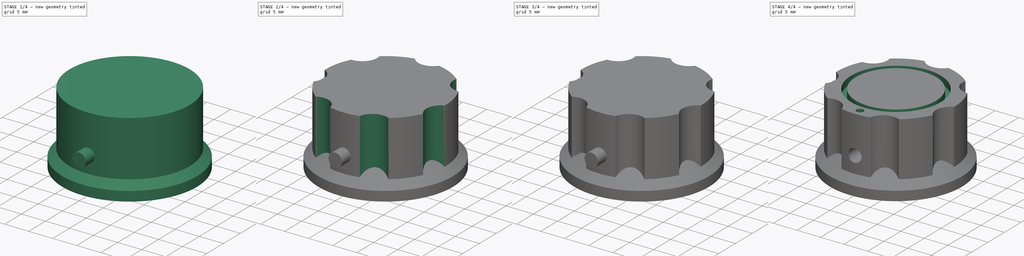
[diagram: build sequence overview — one tinted view per stage of 4, left to right]
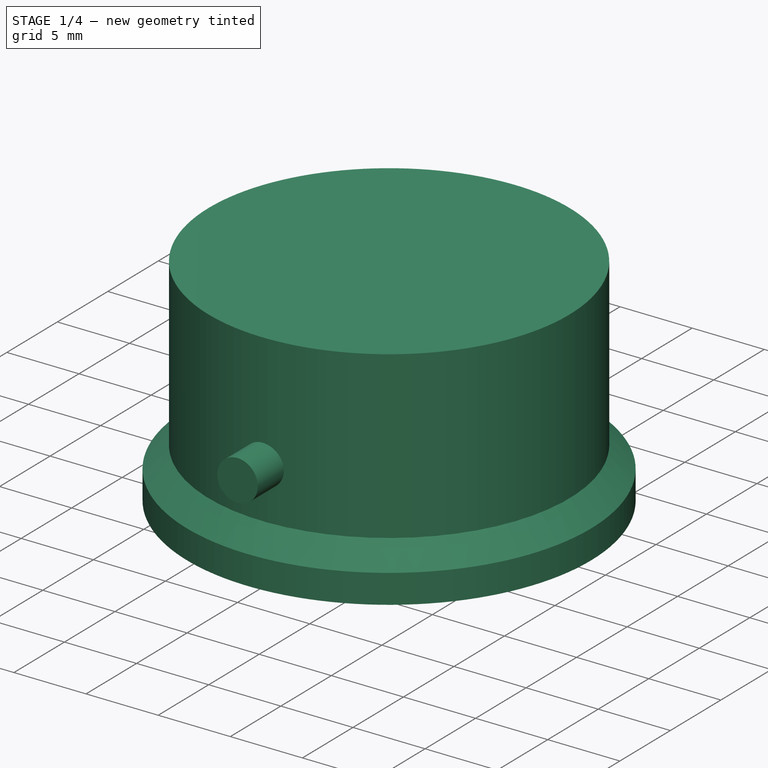
[diagram: stage 1 of 4 — iso view after this stage's code; geometry added in this stage tinted green]
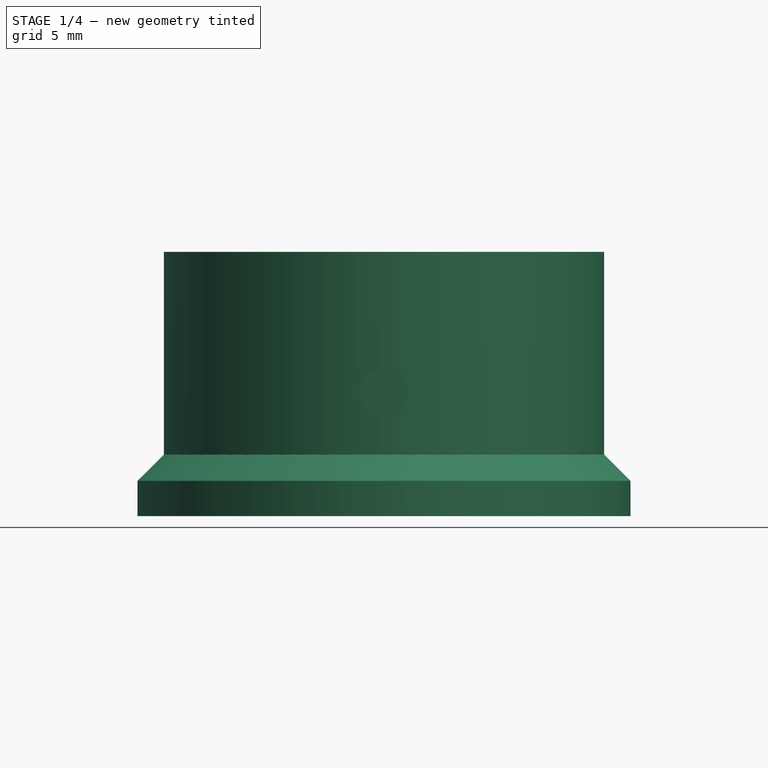
[diagram: stage 1 of 4 — front view after this stage's code; geometry added in this stage tinted green]
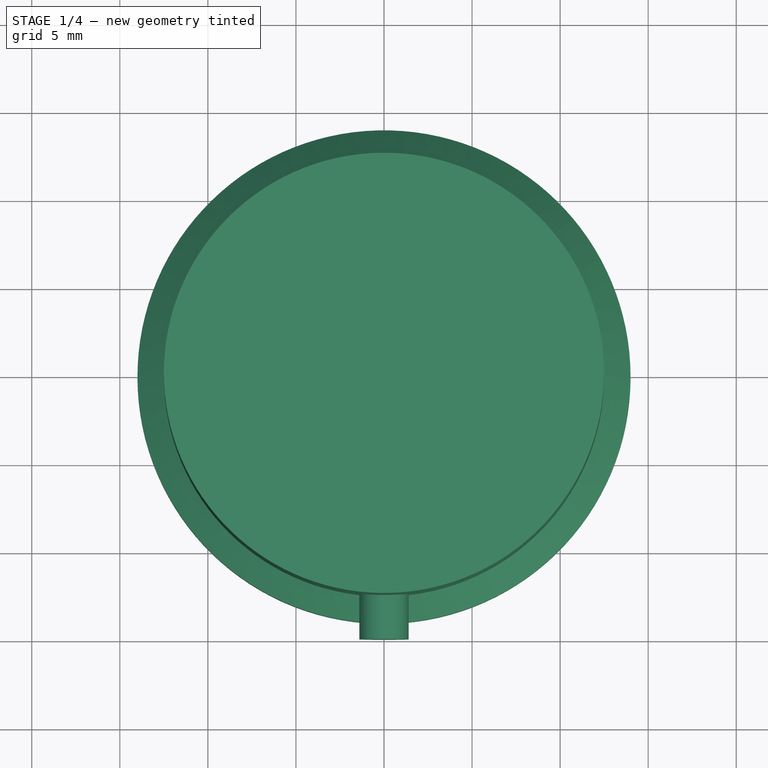
[diagram: stage 1 of 4 — top view after this stage's code; geometry added in this stage tinted green]
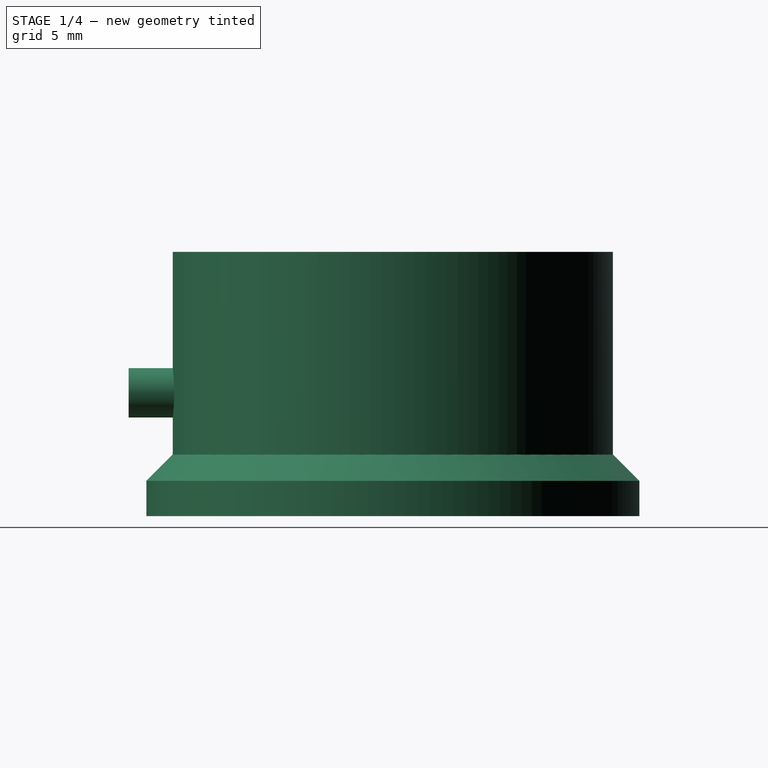
[diagram: stage 1 of 4 — right view after this stage's code; geometry added in this stage tinted green]
FCSTD DOCUMENT  (FreeCAD 0.16R6222 (Git))
Label: knob Z
License: All rights reserved
LicenseURL: http://en.wikipedia.org/wiki/All_rights_reserved
objects: Sketcher::SketchObject×9, PartDesign::Pad×4, PartDesign::Pocket×4, PartDesign::PolarPattern×2, PartDesign::Revolution×1, Part::MultiFuse×1, Part::Cut×1, Part::Feature×1
note: 32 computed .brp shape members not serialized (recipe doc carries the construction recipe); baked Part::Feature solids carry a one-line shape summary decoded from their .brp

FEATURE [Sketcher::SketchObject] Sketch
  sketch-geometry (1):
    g0: Circle CenterX=0 CenterY=0 CenterZ=0 NormalX=0 NormalY=0 NormalZ=1 Radius=12.5
  constraints (2):
    c: Coincident(g0,g-1)
    c: Radius(g0) = 12.5
FEATURE [PartDesign::Pad] Pad  label="main body extrusion"
  Length = 15
  Length2 = 100
  Sketch = -> Sketch
  Type = 0
FEATURE [Sketcher::SketchObject] Sketch002
  Placement = pos=(0,0,0) rot=(-1,0,0;4.71239rad)
  sketch-geometry (5):
    g0: LineSegment StartX=0 StartY=0 StartZ=0 EndX=0 EndY=5.18293 EndZ=0
    g1: LineSegment StartX=0 StartY=5.18293 StartZ=0 EndX=10.8171 EndY=5.18293 EndZ=0
    g2: LineSegment StartX=10.8171 StartY=5.18293 StartZ=0 EndX=14 EndY=2 EndZ=0
    g3: LineSegment StartX=14 StartY=2 StartZ=0 EndX=14 EndY=0 EndZ=0
    g4: LineSegment StartX=14 StartY=0 StartZ=0 EndX=0 EndY=0 EndZ=0
  constraints (13):
    c: Vertical(g0)
    c: Coincident(g0,g1)
    c: Horizontal(g1)
    c: Coincident(g1,g2)
    c: Coincident(g2,g3)
    c: Vertical(g3)
    c: Coincident(g3,g4)
    c: Coincident(g4,g0)
    c: Horizontal(g4)
    c: DistanceX(g4) = -14
    c: Angle(g2,g4) = 0.785398
    c: Coincident(g-1,g0)
    c: DistanceY(g3) = -2
FEATURE [PartDesign::Revolution] Revolution
  Angle = 360
  Axis = (0,0,1)
  Base = (0,0,0)
  Placement = pos=(0,0,0) rot=(-1,0,0;4.71239rad)
  ReferenceAxis = -> Sketch002 [V_Axis]
  Reversed = true
  Sketch = -> Sketch002
FEATURE [Sketcher::SketchObject] Sketch007
  Placement = pos=(0,0,0) rot=(-1,0,0;4.71239rad)
  sketch-geometry (1):
    g0: Circle CenterX=0 CenterY=7 CenterZ=0 NormalX=0 NormalY=0 NormalZ=1 Radius=1.4
  constraints (3):
    c: PointOnObject(g0,g-2)
    c: Radius(g0) = 1.4
    c: DistanceY(g-1,g0) = 7
FEATURE [PartDesign::Pad] Pad003
  Length = 15
  Length2 = 100
  Placement = pos=(0,0,0) rot=(-1,0,0;4.71239rad)
  Sketch = -> Sketch007
  Type = 0
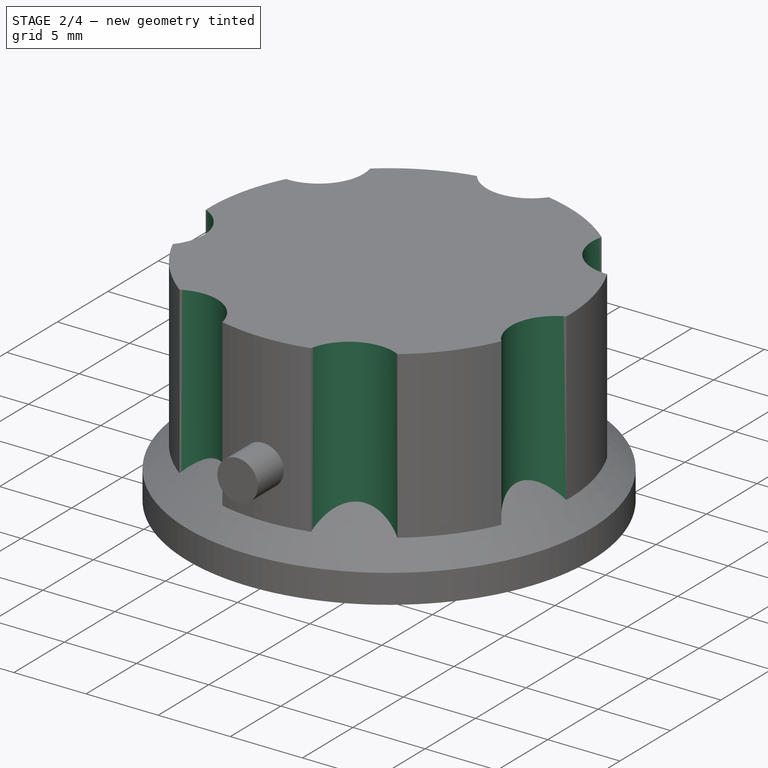
[diagram: stage 2 of 4 — iso view after this stage's code; geometry added in this stage tinted green]
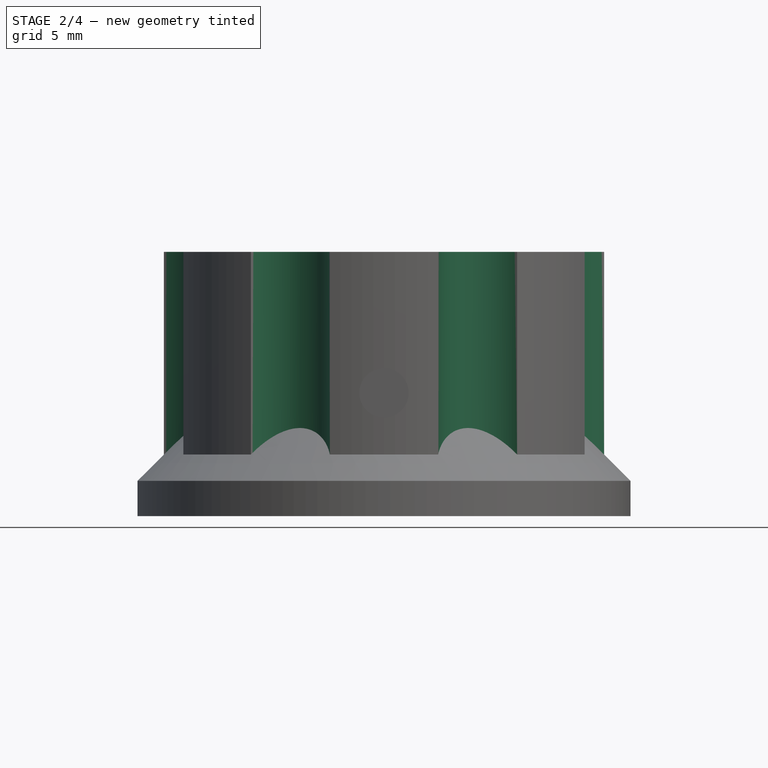
[diagram: stage 2 of 4 — front view after this stage's code; geometry added in this stage tinted green]
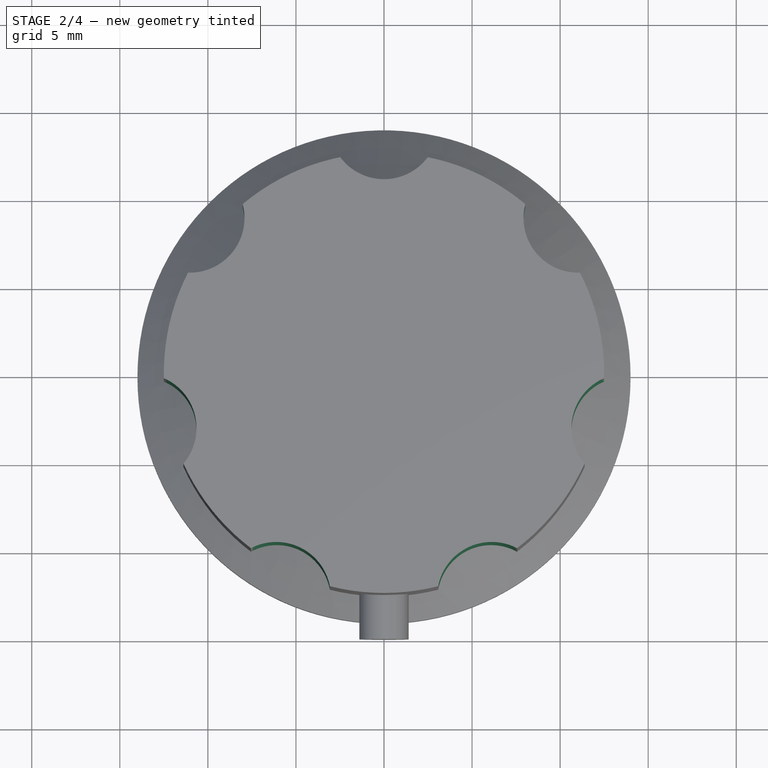
[diagram: stage 2 of 4 — top view after this stage's code; geometry added in this stage tinted green]
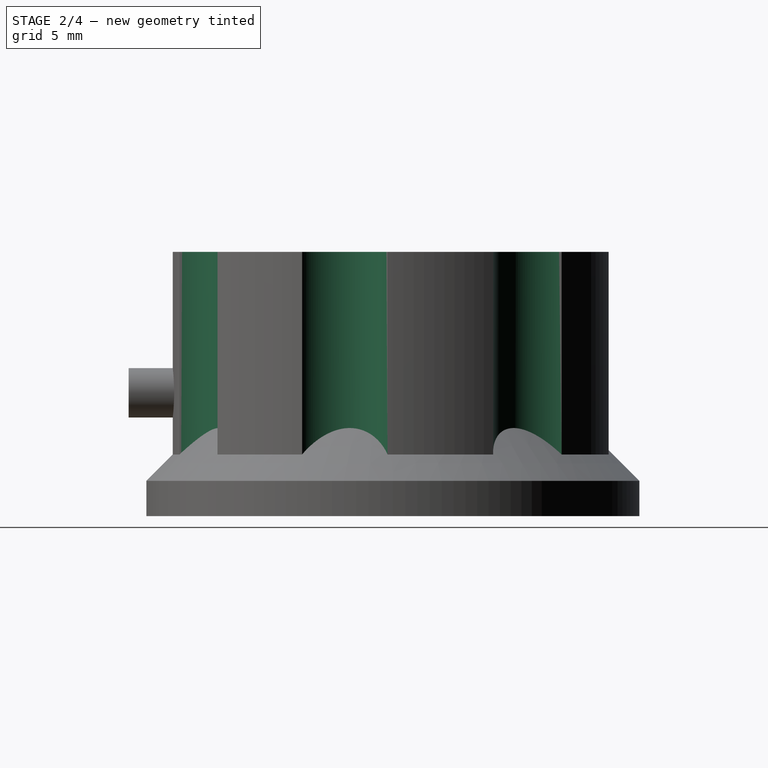
[diagram: stage 2 of 4 — right view after this stage's code; geometry added in this stage tinted green]
FEATURE [Sketcher::SketchObject] Sketch001
  Placement = pos=(0,0,15) rot=(0,0,1;0rad)
  Support = -> Pad [Face3]
  sketch-geometry (1):
    g0: Circle CenterX=0 CenterY=14.1 CenterZ=0 NormalX=0 NormalY=0 NormalZ=1 Radius=3.1
  constraints (3):
    c: PointOnObject(g0,g-2)
    c: Radius(g0) = 3.1
    c: DistanceY(g-1,g0) = 14.1
FEATURE [PartDesign::Pocket] Pocket  label="creek pocket"
  Length = 5
  Sketch = -> Sketch001
  Type = 1
FEATURE [PartDesign::PolarPattern] PolarPattern  label="holes"
  Angle = 360
  Axis = -> Sketch001 [N_Axis]
  Occurrences = 7
  Originals = -> [Pocket]
FEATURE [Part::MultiFuse] Fusion
  Shapes = -> [PolarPattern,Revolution]
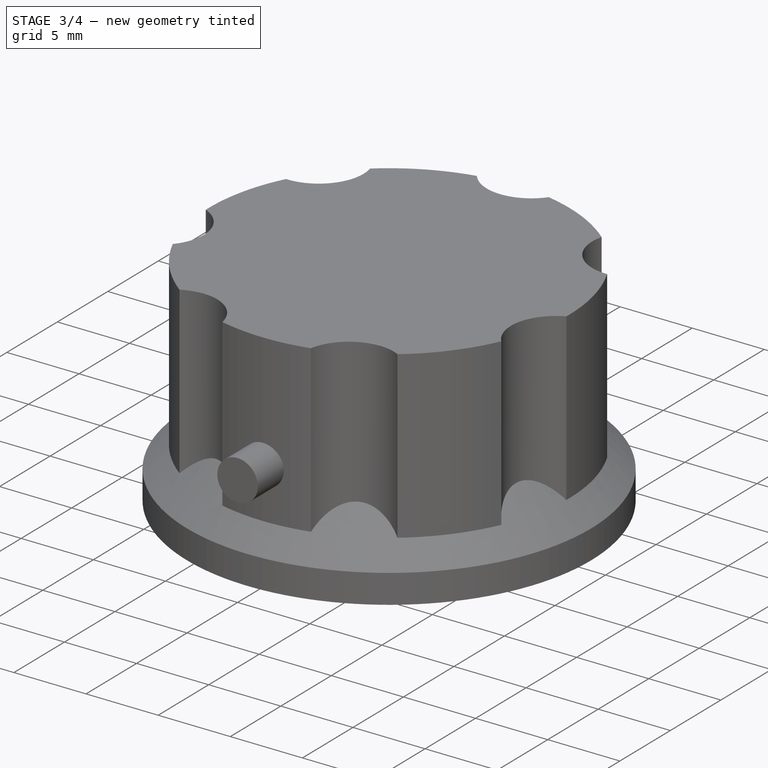
[diagram: stage 3 of 4 — iso view after this stage's code; geometry added in this stage tinted green]
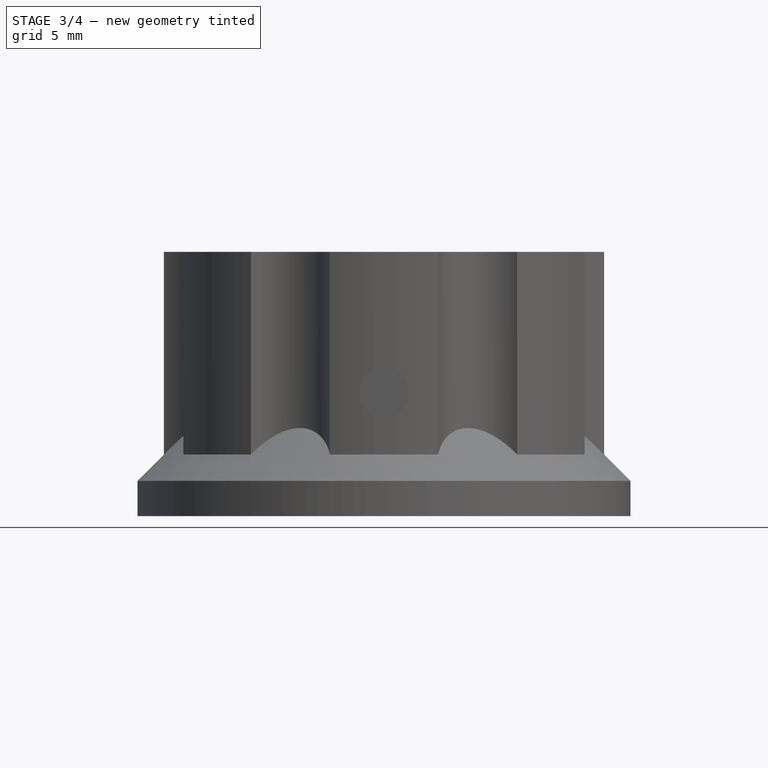
[diagram: stage 3 of 4 — front view after this stage's code; geometry added in this stage tinted green]
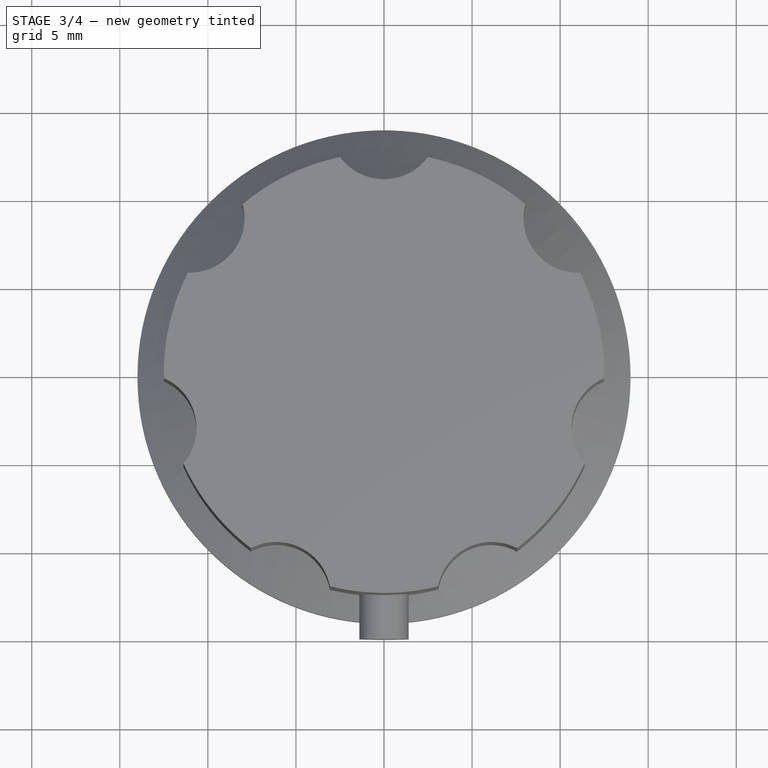
[diagram: stage 3 of 4 — top view after this stage's code; geometry added in this stage tinted green]
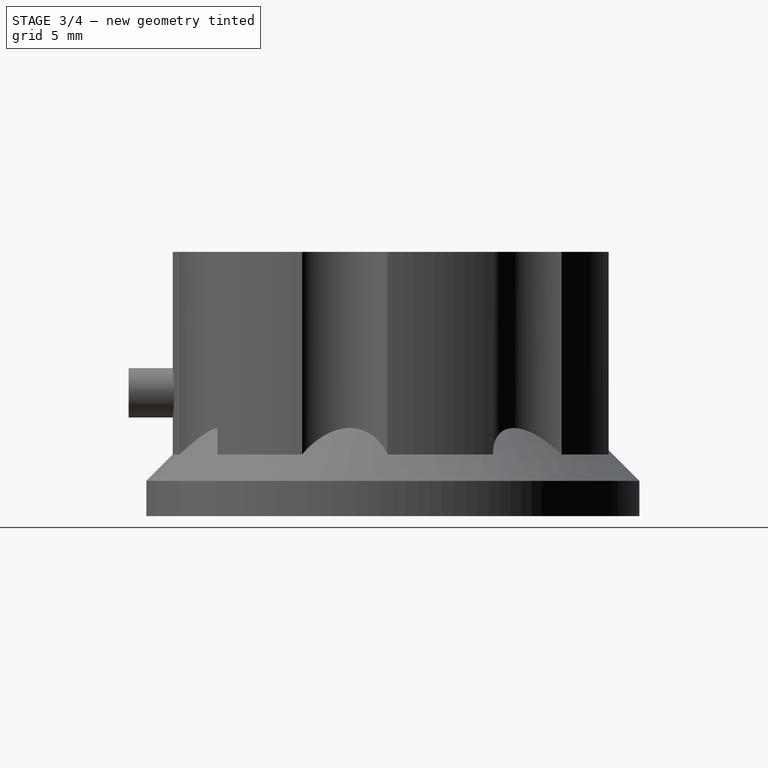
[diagram: stage 3 of 4 — right view after this stage's code; geometry added in this stage tinted green]
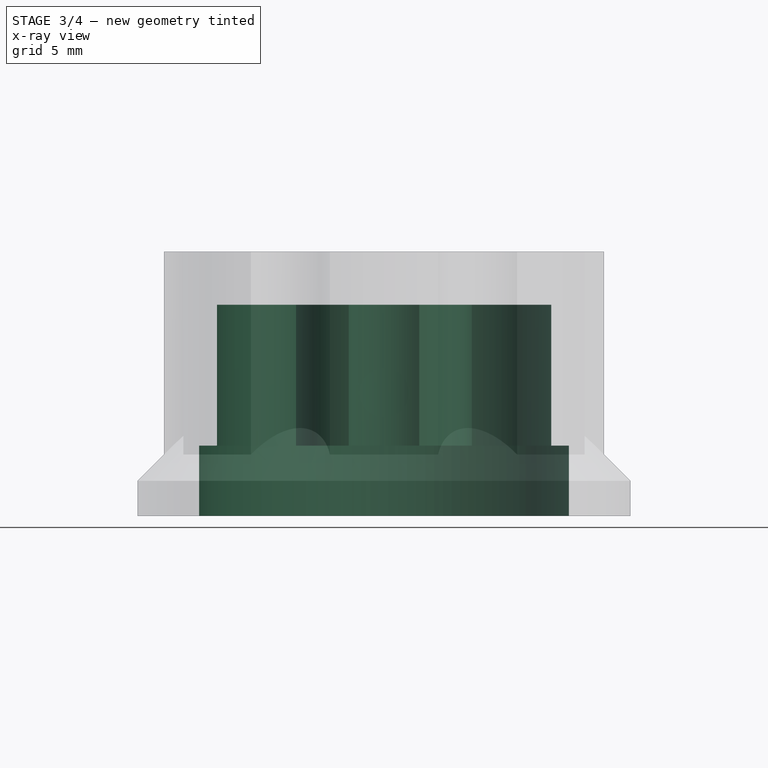
[diagram: stage 3 of 4 — x-ray composite at the front view; earlier geometry ghosted, this stage's added geometry solid]
FEATURE [Sketcher::SketchObject] Sketch003
  Placement = pos=(0,0,0) rot=(1,0,0;3.14159rad)
  Support = -> Fusion [Face19]
  sketch-geometry (1):
    g0: Circle CenterX=0 CenterY=0 CenterZ=0 NormalX=0 NormalY=0 NormalZ=1 Radius=10.5
  constraints (2):
    c: Coincident(g0,g-1)
    c: Radius(g0) = 10.5
FEATURE [PartDesign::Pocket] Pocket001
  Length = 4
  Sketch = -> Sketch003
  Type = 0
FEATURE [Sketcher::SketchObject] Sketch004
  Placement = pos=(0,0,4) rot=(1,0,0;3.14159rad)
  Support = -> Pocket001 [Face22]
  sketch-geometry (1):
    g0: Circle CenterX=0 CenterY=0 CenterZ=0 NormalX=0 NormalY=0 NormalZ=1 Radius=9.5
  constraints (2):
    c: Coincident(g0,g-1)
    c: Radius(g0) = 9.5
FEATURE [PartDesign::Pocket] Pocket002
  Length = 8
  Sketch = -> Sketch004
  Type = 0
FEATURE [Sketcher::SketchObject] Sketch005
  Placement = pos=(0,0,12) rot=(1,0,0;3.14159rad)
  Support = -> Pocket002 [Face24]
  sketch-geometry (2):
    g0: Circle CenterX=0 CenterY=0 CenterZ=0 NormalX=0 NormalY=0 NormalZ=1 Radius=5
    g1: Circle CenterX=0 CenterY=0 CenterZ=0 NormalX=0 NormalY=0 NormalZ=1 Radius=3.175
  constraints (4):
    c: Coincident(g0,g-1)
    c: Coincident(g1,g-1)
    c: Radius(g1) = 3.175
    c: Radius(g0) = 5
FEATURE [PartDesign::Pad] Pad001
  Length = 8
  Length2 = 100
  Sketch = -> Sketch005
  Type = 0
FEATURE [Sketcher::SketchObject] Sketch006
  Placement = pos=(0,0,4) rot=(1,0,0;3.14159rad)
  Support = -> Pad001 [Face26]
  sketch-geometry (4):
    g0: LineSegment StartX=-2 StartY=3.59036 StartZ=0 EndX=2 EndY=3.59036 EndZ=0
    g1: LineSegment StartX=2 StartY=3.59036 StartZ=0 EndX=2 EndY=9.98646 EndZ=0
    g2: LineSegment StartX=2 StartY=9.98646 StartZ=0 EndX=-2 EndY=9.98646 EndZ=0
    g3: LineSegment StartX=-2 StartY=9.98646 StartZ=0 EndX=-2 EndY=3.59036 EndZ=0
  constraints (10):
    c: Coincident(g0,g1)
    c: Coincident(g1,g2)
    c: Coincident(g2,g3)
    c: Coincident(g3,g0)
    c: Horizontal(g0)
    c: Horizontal(g2)
    c: Vertical(g1)
    c: Vertical(g3)
    c: DistanceX(g2) = -4
    c: DistanceX(g-1,g0) = 2
FEATURE [PartDesign::Pad] Pad002
  Length = 10
  Length2 = 100
  Reversed = true
  Sketch = -> Sketch006
  Type = 0
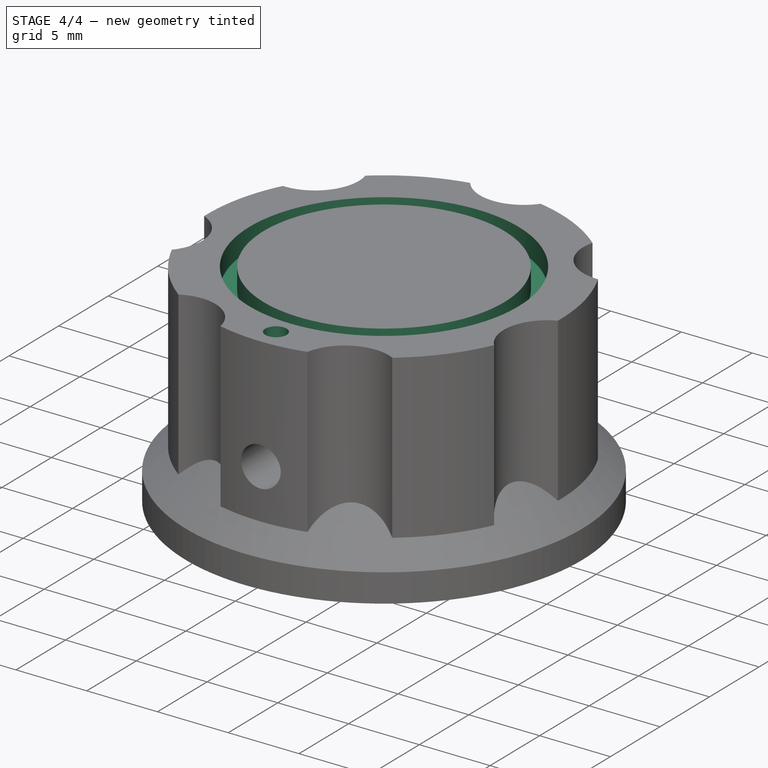
[diagram: stage 4 of 4 — iso view after this stage's code; geometry added in this stage tinted green]
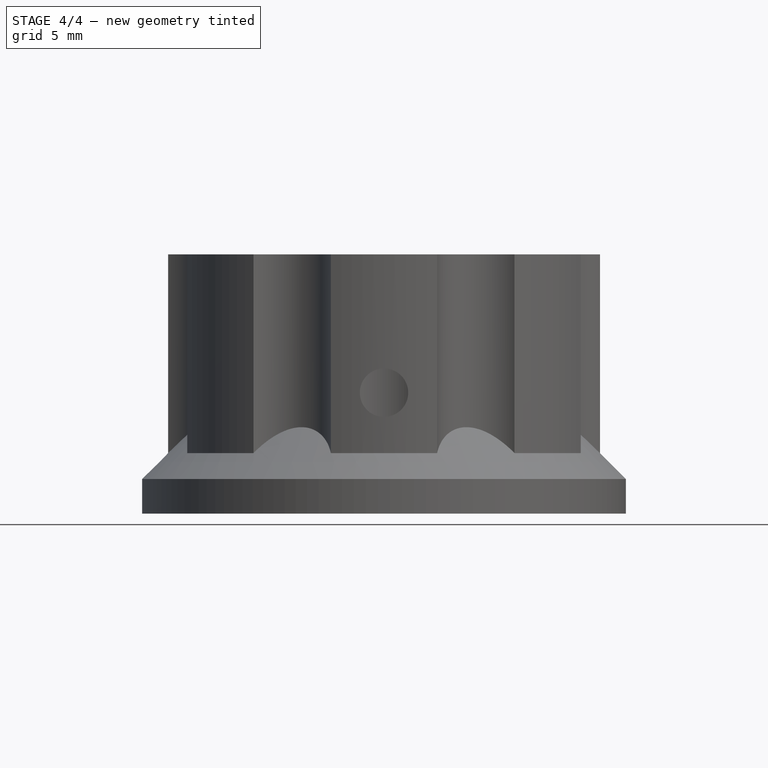
[diagram: stage 4 of 4 — front view after this stage's code; geometry added in this stage tinted green]
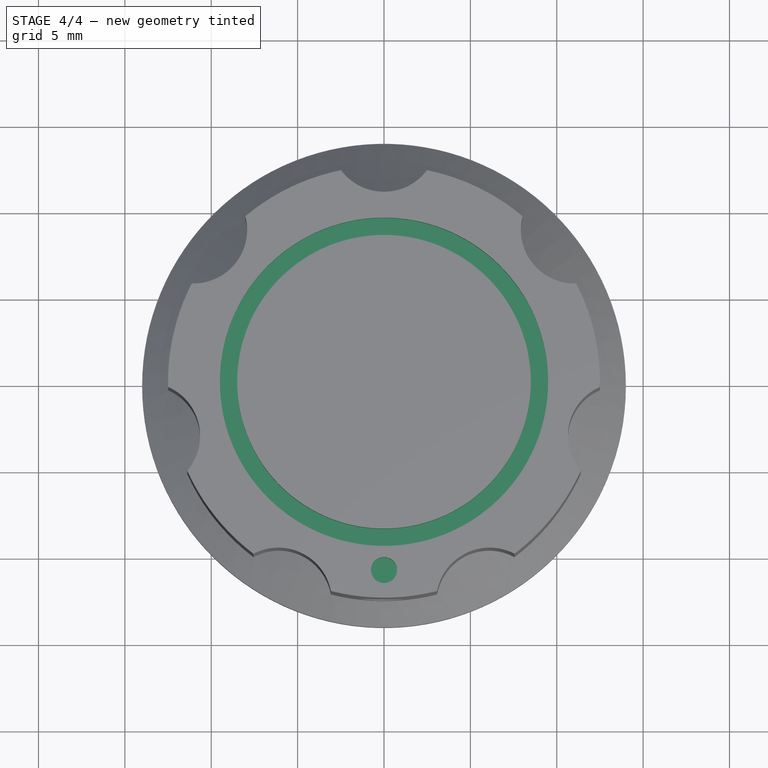
[diagram: stage 4 of 4 — top view after this stage's code; geometry added in this stage tinted green]
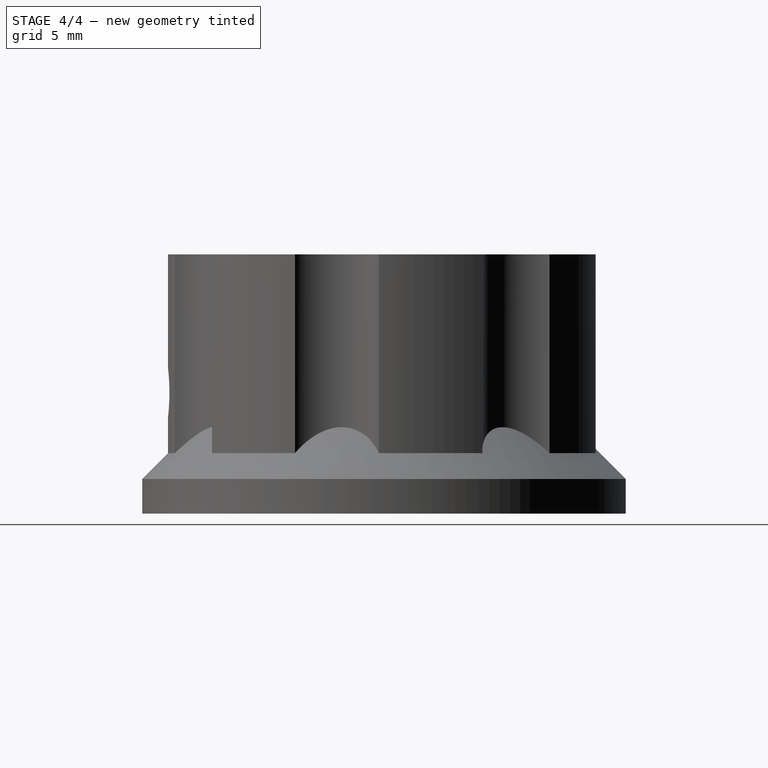
[diagram: stage 4 of 4 — right view after this stage's code; geometry added in this stage tinted green]
FEATURE [PartDesign::PolarPattern] PolarPattern001
  Angle = 360
  Axis = -> Sketch006 [N_Axis]
  Occurrences = 3
  Originals = -> [Pad002]
FEATURE [Part::Cut] Cut
  Base = -> PolarPattern001
  Tool = -> Pad003
FEATURE [Sketcher::SketchObject] Sketch008
  Placement = pos=(0,0,15) rot=(0,0,1;0rad)
  Support = -> Cut [Face20]
  sketch-geometry (3):
    g0: Circle CenterX=0 CenterY=0 CenterZ=0 NormalX=0 NormalY=0 NormalZ=1 Radius=9.5
    g1: Circle CenterX=0 CenterY=0 CenterZ=0 NormalX=0 NormalY=0 NormalZ=1 Radius=8.5
    g2: Circle CenterX=0 CenterY=-10.9 CenterZ=0 NormalX=0 NormalY=0 NormalZ=1 Radius=0.75
  constraints (7):
    c: Coincident(g0,g-1)
    c: Coincident(g1,g-1)
    c: PointOnObject(g2,g-2)
    c: Radius(g1) = 8.5
    c: Radius(g0) = 9.5
    c: Radius(g2) = 0.75
    c: DistanceY(g-1,g2) = -10.9
FEATURE [PartDesign::Pocket] Pocket003
  Length = 1.5
  Sketch = -> Sketch008
  Type = 0
FEATURE [Part::Feature] Pocket003001  label="Pocket004"
  shape: bbox 28 x 28 x 15 mm, 44 faces (baked)
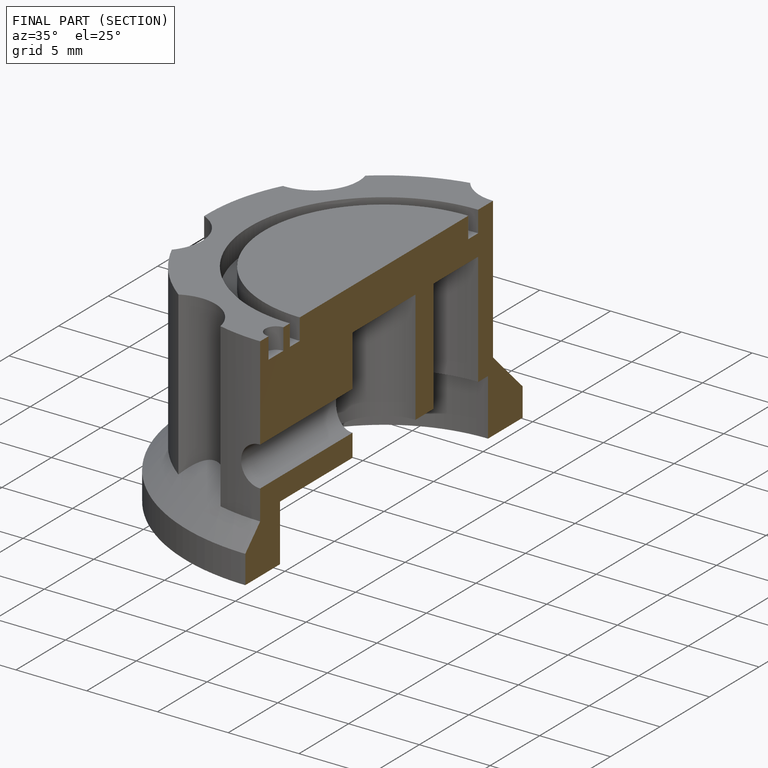
[diagram: finished part — half-section view (interior)]
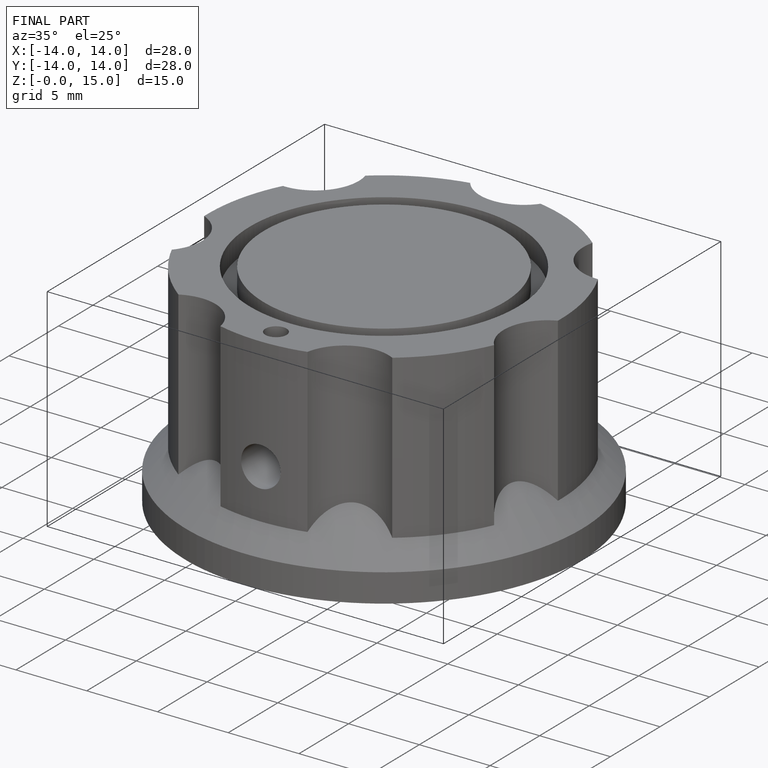
[diagram: finished part — iso view with bounding-box wireframe]
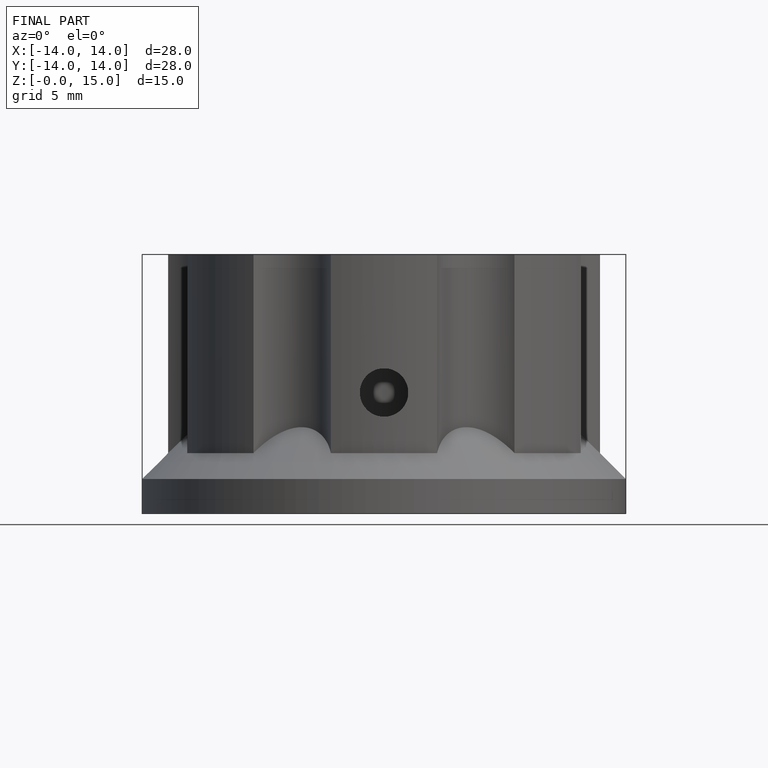
[diagram: finished part — front view with bounding-box wireframe]
